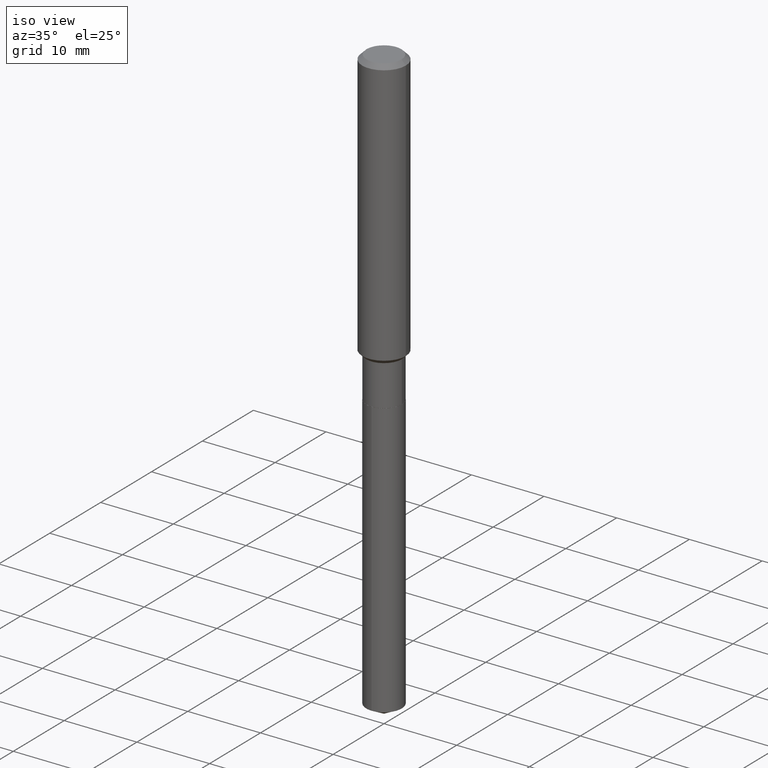
[diagram: clean part render]
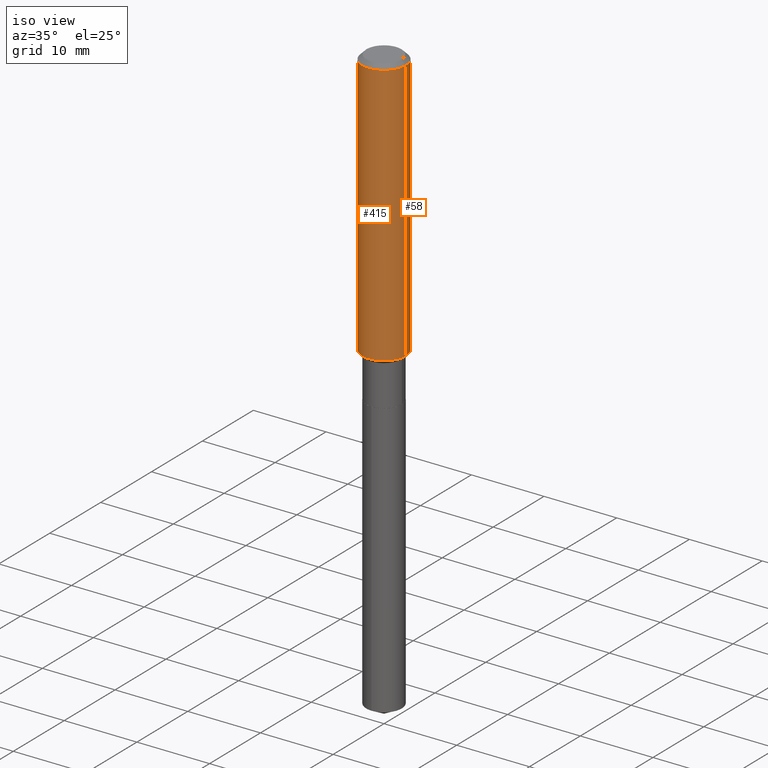
[diagram: same view with one multi-face feature highlighted, each face labeled with its STEP entity id]
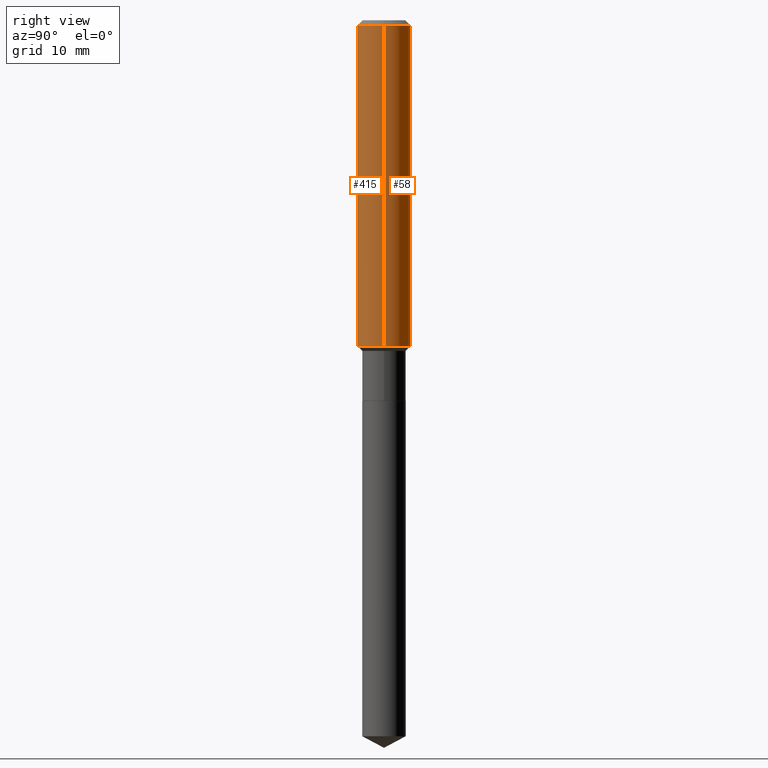
[diagram: same view with one multi-face feature highlighted, each face labeled with its STEP entity id]
A machine part, iso view. The highlighted faces form ONE feature: a constant-radius fillet chain: 2 tangent blend faces with common blend radius 2.9997 mm. The faces share edges in the B-rep.
A second angle (right view) of the same feature is appended — it is thin or edge-on in the first view.
Their STEP definitions:
[1] entity #415 (Cylinder):
#34 = EDGE_CURVE ( 'NONE', #230, #267, #169, .T. ) ;
#80 = AXIS2_PLACEMENT_3D ( 'NONE', #161, #417, #152 ) ;
#106 = CARTESIAN_POINT ( 'NONE',  ( 0.1181000000000001632, -5.871449593465574484E-15, -1.445450000000000124 ) ) ;
#115 = EDGE_LOOP ( 'NONE', ( #349, #223, #436, #344 ) ) ;
#121 = CARTESIAN_POINT ( 'NONE',  ( 0.000000000000000000, 0.000000000000000000, 0.000000000000000000 ) ) ;
#123 = FACE_OUTER_BOUND ( 'NONE', #115, .T. ) ;
#146 = LINE ( 'NONE', #330, #173 ) ;
#152 = DIRECTION ( 'NONE',  ( 1.000000000000000000, -6.982962677686263555E-15, 0.000000000000000000 ) ) ;
#156 = DIRECTION ( 'NONE',  ( 1.000000000000000000, -6.982962677686266711E-15, 0.000000000000000000 ) ) ;
#159 = CYLINDRICAL_SURFACE ( 'NONE', #252, 0.1181000000000000799 ) ;
#161 = CARTESIAN_POINT ( 'NONE',  ( 3.534802885900305926E-29, -5.046761701230824643E-15, -1.445450000000000124 ) ) ;
#169 = LINE ( 'NONE', #474, #276 ) ;
#173 = VECTOR ( 'NONE', #219, 39.37007874015748143 ) ;
#181 = AXIS2_PLACEMENT_3D ( 'NONE', #351, #302, #156 ) ;
#189 = VERTEX_POINT ( 'NONE', #444 ) ;
#196 = EDGE_CURVE ( 'NONE', #239, #189, #146, .T. ) ;
#219 = DIRECTION ( 'NONE',  ( -2.445468806185136877E-29, 3.491481338843145188E-15, 1.000000000000000000 ) ) ;
#223 = ORIENTED_EDGE ( 'NONE', *, *, #310, .T. ) ;
#230 = VERTEX_POINT ( 'NONE', #106 ) ;
#236 = DIRECTION ( 'NONE',  ( -2.445468806185136597E-29, 3.491481338843145583E-15, 1.000000000000000000 ) ) ;
#239 = VERTEX_POINT ( 'NONE', #298 ) ;
#244 = DIRECTION ( 'NONE',  ( -2.445468806185136877E-29, 3.491481338843145188E-15, 1.000000000000000000 ) ) ;
#252 = AXIS2_PLACEMENT_3D ( 'NONE', #121, #236, #271 ) ;
#267 = VERTEX_POINT ( 'NONE', #306 ) ;
#271 = DIRECTION ( 'NONE',  ( 1.000000000000000000, -6.982962677686266711E-15, 4.876176775795936353E-29 ) ) ;
#276 = VECTOR ( 'NONE', #244, 39.37007874015748143 ) ;
#298 = CARTESIAN_POINT ( 'NONE',  ( -0.1181000000000001632, -4.207610730298144868E-15, -1.445450000000000124 ) ) ;
#302 = DIRECTION ( 'NONE',  ( -2.445468806185136597E-29, 3.491481338843145583E-15, 1.000000000000000000 ) ) ;
#306 = CARTESIAN_POINT ( 'NONE',  ( 0.1180999999999999966, -9.071566814582237199E-16, -0.02362000000000014088 ) ) ;
#310 = EDGE_CURVE ( 'NONE', #239, #230, #340, .T. ) ;
#326 = EDGE_CURVE ( 'NONE', #189, #267, #357, .T. ) ;
#330 = CARTESIAN_POINT ( 'NONE',  ( -0.1181000000000000799, 8.391509709326788873E-16, -5.809262341591047988E-30 ) ) ;
#340 = CIRCLE ( 'NONE', #80, 0.1181000000000001632 ) ;
#344 = ORIENTED_EDGE ( 'NONE', *, *, #326, .F. ) ;
#349 = ORIENTED_EDGE ( 'NONE', *, *, #196, .F. ) ;
#351 = CARTESIAN_POINT ( 'NONE',  ( 5.776197320209327532E-31, -8.246878922347559293E-17, -0.02362000000000014088 ) ) ;
#357 = CIRCLE ( 'NONE', #181, 0.1180999999999999966 ) ;
#415 = ADVANCED_FACE ( 'NONE', ( #123 ), #159, .T. ) ;
#417 = DIRECTION ( 'NONE',  ( -2.445468806185136597E-29, 3.491481338843145583E-15, 1.000000000000000000 ) ) ;
#436 = ORIENTED_EDGE ( 'NONE', *, *, #34, .T. ) ;
#444 = CARTESIAN_POINT ( 'NONE',  ( -0.1180999999999999966, -1.725464274294470473E-15, -0.02362000000000014088 ) ) ;
#474 = CARTESIAN_POINT ( 'NONE',  ( 0.1181000000000000799, -8.246878922347486570E-16, 5.758764772215004644E-30 ) ) ;
[2] entity #58 (Cylinder):
#18 = ORIENTED_EDGE ( 'NONE', *, *, #196, .T. ) ;
#34 = EDGE_CURVE ( 'NONE', #230, #267, #169, .T. ) ;
#44 = ORIENTED_EDGE ( 'NONE', *, *, #34, .F. ) ;
#47 = CARTESIAN_POINT ( 'NONE',  ( 5.776197320209327532E-31, -8.246878922347559293E-17, -0.02362000000000014088 ) ) ;
#51 = DIRECTION ( 'NONE',  ( 1.000000000000000000, -6.982962677686266711E-15, 0.000000000000000000 ) ) ;
#58 = ADVANCED_FACE ( 'NONE', ( #210 ), #60, .T. ) ;
#60 = CYLINDRICAL_SURFACE ( 'NONE', #200, 0.1181000000000000799 ) ;
#62 = DIRECTION ( 'NONE',  ( -2.445468806185136597E-29, 3.491481338843145583E-15, 1.000000000000000000 ) ) ;
#63 = EDGE_CURVE ( 'NONE', #230, #239, #350, .T. ) ;
#98 = DIRECTION ( 'NONE',  ( -2.445468806185136597E-29, 3.491481338843145583E-15, 1.000000000000000000 ) ) ;
#106 = CARTESIAN_POINT ( 'NONE',  ( 0.1181000000000001632, -5.871449593465574484E-15, -1.445450000000000124 ) ) ;
#146 = LINE ( 'NONE', #330, #173 ) ;
#150 = CIRCLE ( 'NONE', #406, 0.1180999999999999966 ) ;
#167 = ORIENTED_EDGE ( 'NONE', *, *, #273, .F. ) ;
#169 = LINE ( 'NONE', #474, #276 ) ;
#173 = VECTOR ( 'NONE', #219, 39.37007874015748143 ) ;
#189 = VERTEX_POINT ( 'NONE', #444 ) ;
#196 = EDGE_CURVE ( 'NONE', #239, #189, #146, .T. ) ;
#200 = AXIS2_PLACEMENT_3D ( 'NONE', #440, #98, #246 ) ;
#210 = FACE_OUTER_BOUND ( 'NONE', #395, .T. ) ;
#219 = DIRECTION ( 'NONE',  ( -2.445468806185136877E-29, 3.491481338843145188E-15, 1.000000000000000000 ) ) ;
#230 = VERTEX_POINT ( 'NONE', #106 ) ;
#239 = VERTEX_POINT ( 'NONE', #298 ) ;
#244 = DIRECTION ( 'NONE',  ( -2.445468806185136877E-29, 3.491481338843145188E-15, 1.000000000000000000 ) ) ;
#246 = DIRECTION ( 'NONE',  ( 1.000000000000000000, -6.982962677686266711E-15, 4.876176775795936353E-29 ) ) ;
#267 = VERTEX_POINT ( 'NONE', #306 ) ;
#273 = EDGE_CURVE ( 'NONE', #267, #189, #150, .T. ) ;
#276 = VECTOR ( 'NONE', #244, 39.37007874015748143 ) ;
#283 = AXIS2_PLACEMENT_3D ( 'NONE', #403, #62, #365 ) ;
#298 = CARTESIAN_POINT ( 'NONE',  ( -0.1181000000000001632, -4.207610730298144868E-15, -1.445450000000000124 ) ) ;
#306 = CARTESIAN_POINT ( 'NONE',  ( 0.1180999999999999966, -9.071566814582237199E-16, -0.02362000000000014088 ) ) ;
#330 = CARTESIAN_POINT ( 'NONE',  ( -0.1181000000000000799, 8.391509709326788873E-16, -5.809262341591047988E-30 ) ) ;
#339 = DIRECTION ( 'NONE',  ( -2.445468806185136597E-29, 3.491481338843145583E-15, 1.000000000000000000 ) ) ;
#350 = CIRCLE ( 'NONE', #283, 0.1181000000000001632 ) ;
#360 = ORIENTED_EDGE ( 'NONE', *, *, #63, .T. ) ;
#365 = DIRECTION ( 'NONE',  ( 1.000000000000000000, -6.982962677686263555E-15, 0.000000000000000000 ) ) ;
#395 = EDGE_LOOP ( 'NONE', ( #360, #18, #167, #44 ) ) ;
#403 = CARTESIAN_POINT ( 'NONE',  ( 3.534802885900305926E-29, -5.046761701230824643E-15, -1.445450000000000124 ) ) ;
#406 = AXIS2_PLACEMENT_3D ( 'NONE', #47, #339, #51 ) ;
#440 = CARTESIAN_POINT ( 'NONE',  ( 0.000000000000000000, 0.000000000000000000, 0.000000000000000000 ) ) ;
#444 = CARTESIAN_POINT ( 'NONE',  ( -0.1180999999999999966, -1.725464274294470473E-15, -0.02362000000000014088 ) ) ;
#474 = CARTESIAN_POINT ( 'NONE',  ( 0.1181000000000000799, -8.246878922347486570E-16, 5.758764772215004644E-30 ) ) ;